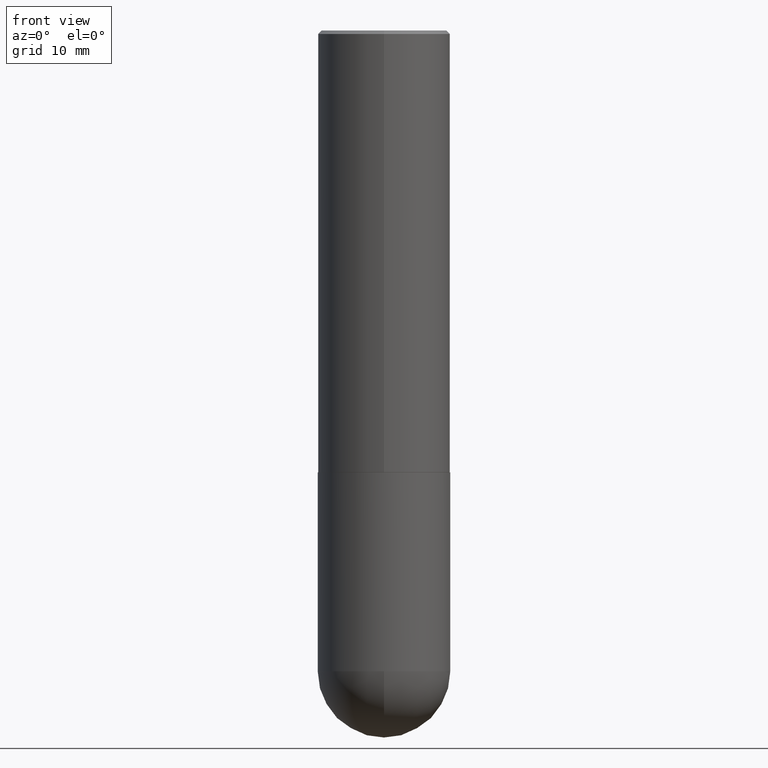
[diagram: clean part render]
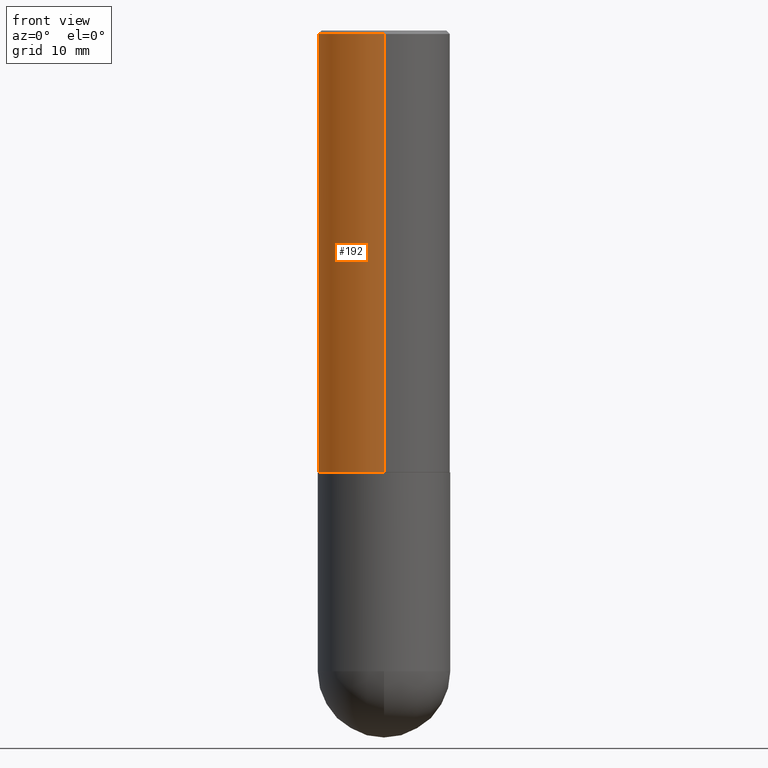
[diagram: same view with one face highlighted and labeled with its STEP entity id]
A machine part, front view. The second image highlights one B-rep face of the part: STEP entity #192.
In plain terms, the highlighted cylindrical surface (partial cylindrical patch) has radius 9.525 mm, axis along (-0, 0, 1).
Its self-contained STEP definition (entity closure, byte-faithful):
#18 = VERTEX_POINT ( 'NONE', #180 ) ;
#20 = ORIENTED_EDGE ( 'NONE', *, *, #398, .T. ) ;
#38 = CARTESIAN_POINT ( 'NONE',  ( 2.664535259100376486E-15, 0.3750000000000001665, -1.309246210372602885E-15 ) ) ;
#52 = EDGE_CURVE ( 'NONE', #18, #397, #365, .T. ) ;
#89 = CARTESIAN_POINT ( 'NONE',  ( 0.000000000000000000, 0.000000000000000000, 0.000000000000000000 ) ) ;
#96 = DIRECTION ( 'NONE',  ( -2.445579214634028911E-29, 3.491323227660273177E-15, 1.000000000000000000 ) ) ;
#99 = EDGE_CURVE ( 'NONE', #327, #369, #358, .T. ) ;
#101 = ORIENTED_EDGE ( 'NONE', *, *, #52, .T. ) ;
#105 = CARTESIAN_POINT ( 'NONE',  ( -2.618611004132351200E-15, -0.3750000000000001665, 1.309246210372602885E-15 ) ) ;
#108 = AXIS2_PLACEMENT_3D ( 'NONE', #89, #216, #351 ) ;
#117 = CIRCLE ( 'NONE', #359, 0.3750000000000000555 ) ;
#119 = CARTESIAN_POINT ( 'NONE',  ( 6.111502457370440261E-29, -8.724816745923021924E-15, -2.499000000000000110 ) ) ;
#138 = DIRECTION ( 'NONE',  ( -2.445579214634028911E-29, 3.491323227660273177E-15, 1.000000000000000000 ) ) ;
#147 = CARTESIAN_POINT ( 'NONE',  ( 2.618611004132350411E-15, 0.3749999999999999445, -0.02000000000000139513 ) ) ;
#150 = DIRECTION ( 'NONE',  ( -2.445579214634029192E-29, 3.491323227660272783E-15, 1.000000000000000000 ) ) ;
#158 = VECTOR ( 'NONE', #96, 39.37007874015748143 ) ;
#169 = ORIENTED_EDGE ( 'NONE', *, *, #368, .F. ) ;
#170 = CIRCLE ( 'NONE', #258, 0.3750000000000002776 ) ;
#176 = EDGE_LOOP ( 'NONE', ( #302, #20, #101, #169 ) ) ;
#180 = CARTESIAN_POINT ( 'NONE',  ( -2.618611004132290852E-15, -0.3750000000000090483, -2.498999999999999222 ) ) ;
#192 = ADVANCED_FACE ( 'NONE', ( #247 ), #384, .T. ) ;
#216 = DIRECTION ( 'NONE',  ( -2.445579214634029192E-29, 3.491323227660272783E-15, 1.000000000000000000 ) ) ;
#247 = FACE_OUTER_BOUND ( 'NONE', #176, .T. ) ;
#248 = DIRECTION ( 'NONE',  ( -6.982962677686266711E-15, -1.000000000000000000, 2.913971193241878794E-15 ) ) ;
#258 = AXIS2_PLACEMENT_3D ( 'NONE', #119, #410, #248 ) ;
#274 = CARTESIAN_POINT ( 'NONE',  ( 4.891158429268078912E-31, -6.982646455320575000E-17, -0.02000000000000008715 ) ) ;
#294 = VECTOR ( 'NONE', #138, 39.37007874015748143 ) ;
#302 = ORIENTED_EDGE ( 'NONE', *, *, #99, .F. ) ;
#316 = CARTESIAN_POINT ( 'NONE',  ( 2.664535259100408040E-15, 0.3749999999999915623, -2.499000000000001442 ) ) ;
#327 = VERTEX_POINT ( 'NONE', #316 ) ;
#346 = CARTESIAN_POINT ( 'NONE',  ( -2.572686749164323547E-15, -0.3750000000000001110, -0.01999999999999877570 ) ) ;
#351 = DIRECTION ( 'NONE',  ( -6.982962677686266711E-15, -1.000000000000000000, 3.491323227660272783E-15 ) ) ;
#358 = LINE ( 'NONE', #38, #158 ) ;
#359 = AXIS2_PLACEMENT_3D ( 'NONE', #274, #150, #375 ) ;
#365 = LINE ( 'NONE', #105, #294 ) ;
#368 = EDGE_CURVE ( 'NONE', #369, #397, #117, .T. ) ;
#369 = VERTEX_POINT ( 'NONE', #147 ) ;
#375 = DIRECTION ( 'NONE',  ( -6.982962677686265922E-15, -1.000000000000000000, 3.494488891895536035E-15 ) ) ;
#384 = CYLINDRICAL_SURFACE ( 'NONE', #108, 0.3750000000000001665 ) ;
#397 = VERTEX_POINT ( 'NONE', #346 ) ;
#398 = EDGE_CURVE ( 'NONE', #327, #18, #170, .T. ) ;
#410 = DIRECTION ( 'NONE',  ( -2.445579214634029192E-29, 3.491323227660272783E-15, 1.000000000000000000 ) ) ;